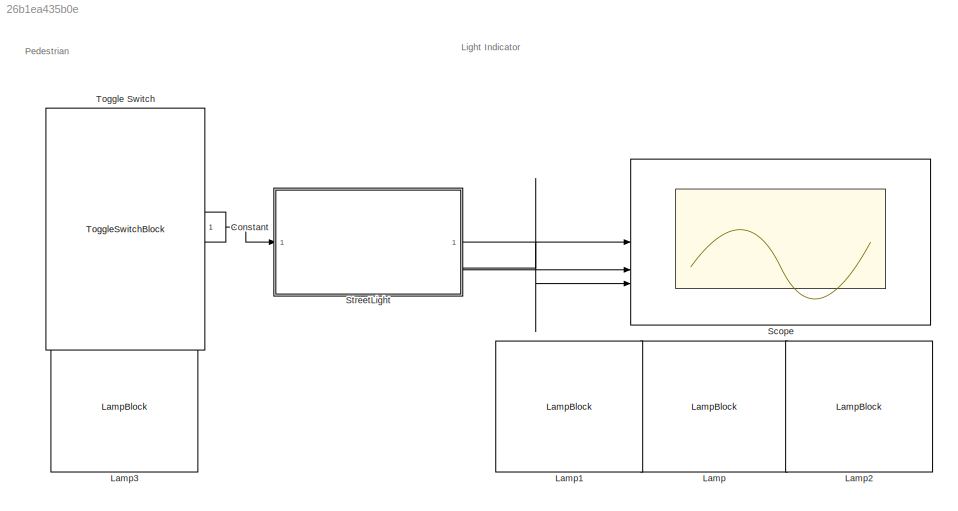
MODEL slx_26b1ea435b0e
KIND model
CONFIG AbsTol = auto
CONFIG EnableMultiTasking = off
CONFIG FixedStep = auto
CONFIG MaxStep = auto
CONFIG MinStep = auto
CONFIG RelTol = 1e-3
CONFIG SampleTimeConstraint = Unconstrained
CONFIG SolverName = VariableStepAuto
CONFIG StartTime = 0.0
CONFIG StopTime = 31
BLOCK [Constant] Constant
  OutDataTypeStr = boolean
BLOCK [LampBlock] Lamp
BLOCK [LampBlock] Lamp1
BLOCK [LampBlock] Lamp2
BLOCK [LampBlock] Lamp3
BLOCK [Scope] Scope
  Floating = off
  NumInputPorts = 3
  ScopeSpecificationString = Simulink.scopes.TimeScopeBlockCfg('CurrentConfiguration', extmgr.ConfigurationSet(extmgr.Configuration('Core','General UI',true),extmgr.Configuration('Core','Source UI',true),extmgr.Configuration('Sources','WiredSimulink',true),extmgr.Configuration('Visuals','Time Domain',true,'SerializedDisplays',{struct('MinYLimReal','-0.125','MaxYLimReal','1.125','YLabelReal','','MinYLimMag','0.00000','MaxYLimM...<+1633ch>
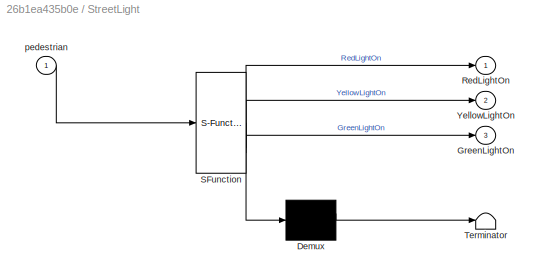
BLOCK [SubSystem] StreetLight
  ErrorFcn = Stateflow.Translate.translate
  PermitHierarchicalResolution = ExplicitOnly
  SFBlockType = Chart
  TreatAsAtomicUnit = on
BLOCK [Demux] StreetLight/ Demux 
  Outputs = 1
BLOCK [S-Function] StreetLight/ SFunction 
  EnableBusSupport = on
  FunctionName = sf_sfun
  PortCounts = [1 4]
  SFcnIsStateOwnerBlock = off
  SFunctionDeploymentMode = off
  Tag = Stateflow S-Function 3
BLOCK [Terminator] StreetLight/ Terminator 
BLOCK [Outport] StreetLight/GreenLightOn
  Port = 3
  VectorParamsAs1DForOutWhenUnconnected = off
BLOCK [Outport] StreetLight/RedLightOn
  VectorParamsAs1DForOutWhenUnconnected = off
BLOCK [Outport] StreetLight/YellowLightOn
  Port = 2
  VectorParamsAs1DForOutWhenUnconnected = off
BLOCK [Inport] StreetLight/pedestrian
BLOCK [ToggleSwitchBlock] Toggle Switch
ANNOTATION (root): Pedestrian
ANNOTATION (root): Light Indicator
LINE Constant:1 -> StreetLight:1
LINE StreetLight:1 -> Scope:3
LINE StreetLight:2 -> Scope:2
LINE StreetLight:3 -> Scope:1
CHART StreetLight states=4 transitions=6
  STATE_LABEL 'GreenLightOn\nentry:\nRedLightOn=0;\nGreenLightOn=1;\nYellowLightOn=0;'
  STATE_LABEL 'RedLightOn\nentry:\nRedLightOn=1;\nGreenLightOn=0;\nYellowLightOn=0;'
  STATE_LABEL 'pedestrian'
  STATE_LABEL 'YellowLightOn\nentry:\nRedLightOn=0;\nGreenLightOn=0;\nYellowLightOn=1;'
CHART  states=0 transitions=0
